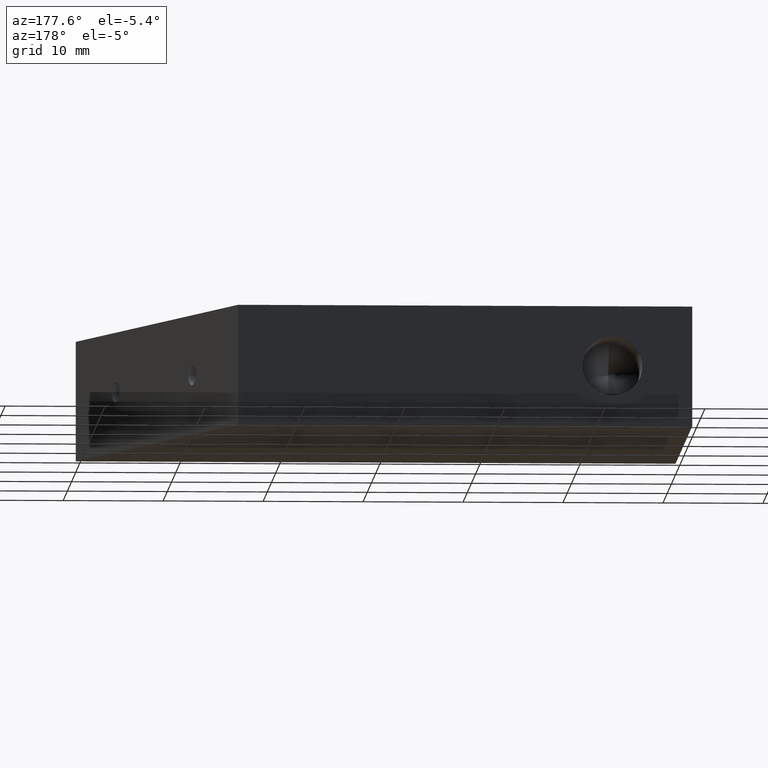
[diagram: clean part render]
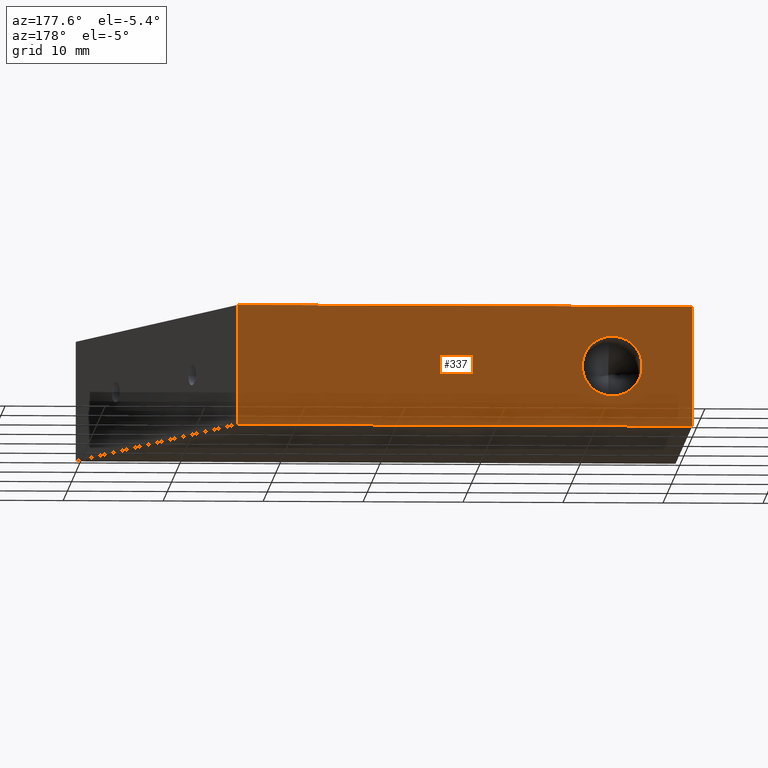
[diagram: same view with one face highlighted and labeled with its STEP entity id]
A machine part, auxiliary view. The second image highlights one B-rep face of the part: STEP entity #337.
In plain terms, the highlighted planar face has unit normal (0, -1, 0).
Its self-contained STEP definition (entity closure, byte-faithful):
#10 = DIRECTION ( 'NONE',  ( -0.0000000000000000000, -0.0000000000000000000, -1.000000000000000000 ) ) ;
#20 = VERTEX_POINT ( 'NONE', #68 ) ;
#36 = DIRECTION ( 'NONE',  ( 0.0000000000000000000, 0.0000000000000000000, 1.000000000000000000 ) ) ;
#37 = DIRECTION ( 'NONE',  ( -0.0000000000000000000, 1.000000000000000000, -0.0000000000000000000 ) ) ;
#40 = CARTESIAN_POINT ( 'NONE',  ( 8.000000000000000000, 40.00000000000000000, 0.0000000000000000000 ) ) ;
#45 = EDGE_CURVE ( 'NONE', #482, #491, #261, .T. ) ;
#48 = DIRECTION ( 'NONE',  ( 0.0000000000000000000, 0.0000000000000000000, 1.000000000000000000 ) ) ;
#62 = ORIENTED_EDGE ( 'NONE', *, *, #181, .F. ) ;
#68 = CARTESIAN_POINT ( 'NONE',  ( 0.0000000000000000000, 40.00000000000000000, -6.000000000000000000 ) ) ;
#78 = CARTESIAN_POINT ( 'NONE',  ( 0.0000000000000000000, 40.00000000000000000, 6.000000000000000000 ) ) ;
#83 = DIRECTION ( 'NONE',  ( -0.0000000000000000000, -0.0000000000000000000, -1.000000000000000000 ) ) ;
#100 = AXIS2_PLACEMENT_3D ( 'NONE', #40, #37, #36 ) ;
#103 = CARTESIAN_POINT ( 'NONE',  ( 45.44119062935171600, 40.00000000000000000, 6.000000000000000000 ) ) ;
#107 = CARTESIAN_POINT ( 'NONE',  ( 45.44119062935171600, 40.00000000000000000, 6.000000000000000000 ) ) ;
#116 = CIRCLE ( 'NONE', #100, 2.999999999999990700 ) ;
#118 = CARTESIAN_POINT ( 'NONE',  ( 45.44119062935171600, 40.00000000000000000, -6.000000000000000000 ) ) ;
#119 = VECTOR ( 'NONE', #83, 1000.000000000000000 ) ;
#135 = LINE ( 'NONE', #103, #119 ) ;
#141 = EDGE_CURVE ( 'NONE', #453, #487, #394, .T. ) ;
#155 = CARTESIAN_POINT ( 'NONE',  ( 8.000000000000000000, 40.00000000000000000, 0.0000000000000000000 ) ) ;
#158 = DIRECTION ( 'NONE',  ( -0.0000000000000000000, 1.000000000000000000, -0.0000000000000000000 ) ) ;
#159 = CARTESIAN_POINT ( 'NONE',  ( 8.000000000000000000, 40.00000000000000000, -2.999999999999990700 ) ) ;
#160 = AXIS2_PLACEMENT_3D ( 'NONE', #404, #484, #462 ) ;
#170 = CARTESIAN_POINT ( 'NONE',  ( 8.000000000000000000, 40.00000000000000000, 2.999999999999990700 ) ) ;
#175 = FACE_BOUND ( 'NONE', #417, .T. ) ;
#177 = FACE_OUTER_BOUND ( 'NONE', #507, .T. ) ;
#181 = EDGE_CURVE ( 'NONE', #491, #20, #205, .T. ) ;
#188 = LINE ( 'NONE', #369, #189 ) ;
#189 = VECTOR ( 'NONE', #370, 1000.000000000000000 ) ;
#205 = LINE ( 'NONE', #397, #213 ) ;
#213 = VECTOR ( 'NONE', #10, 1000.000000000000000 ) ;
#231 = ORIENTED_EDGE ( 'NONE', *, *, #361, .T. ) ;
#250 = VECTOR ( 'NONE', #306, 1000.000000000000000 ) ;
#253 = PLANE ( 'NONE',  #160 ) ;
#261 = LINE ( 'NONE', #411, #250 ) ;
#306 = DIRECTION ( 'NONE',  ( -1.000000000000000000, -0.0000000000000000000, -0.0000000000000000000 ) ) ;
#316 = AXIS2_PLACEMENT_3D ( 'NONE', #155, #158, #48 ) ;
#330 = ORIENTED_EDGE ( 'NONE', *, *, #141, .F. ) ;
#337 = ADVANCED_FACE ( 'NONE', ( #175, #177 ), #253, .F. ) ;
#358 = ORIENTED_EDGE ( 'NONE', *, *, #45, .F. ) ;
#361 = EDGE_CURVE ( 'NONE', #467, #20, #188, .T. ) ;
#369 = CARTESIAN_POINT ( 'NONE',  ( 0.0000000000000000000, 40.00000000000000000, -6.000000000000000000 ) ) ;
#370 = DIRECTION ( 'NONE',  ( -1.000000000000000000, -0.0000000000000000000, -0.0000000000000000000 ) ) ;
#394 = CIRCLE ( 'NONE', #316, 2.999999999999990700 ) ;
#397 = CARTESIAN_POINT ( 'NONE',  ( 0.0000000000000000000, 40.00000000000000000, 6.000000000000000000 ) ) ;
#404 = CARTESIAN_POINT ( 'NONE',  ( 0.0000000000000000000, 40.00000000000000000, 6.000000000000000000 ) ) ;
#411 = CARTESIAN_POINT ( 'NONE',  ( 0.0000000000000000000, 40.00000000000000000, 6.000000000000000000 ) ) ;
#417 = EDGE_LOOP ( 'NONE', ( #330, #448 ) ) ;
#448 = ORIENTED_EDGE ( 'NONE', *, *, #492, .F. ) ;
#453 = VERTEX_POINT ( 'NONE', #170 ) ;
#457 = ORIENTED_EDGE ( 'NONE', *, *, #486, .T. ) ;
#462 = DIRECTION ( 'NONE',  ( 0.0000000000000000000, -0.0000000000000000000, -1.000000000000000000 ) ) ;
#467 = VERTEX_POINT ( 'NONE', #118 ) ;
#482 = VERTEX_POINT ( 'NONE', #107 ) ;
#484 = DIRECTION ( 'NONE',  ( 0.0000000000000000000, -1.000000000000000000, 0.0000000000000000000 ) ) ;
#486 = EDGE_CURVE ( 'NONE', #482, #467, #135, .T. ) ;
#487 = VERTEX_POINT ( 'NONE', #159 ) ;
#491 = VERTEX_POINT ( 'NONE', #78 ) ;
#492 = EDGE_CURVE ( 'NONE', #487, #453, #116, .T. ) ;
#507 = EDGE_LOOP ( 'NONE', ( #231, #62, #358, #457 ) ) ;